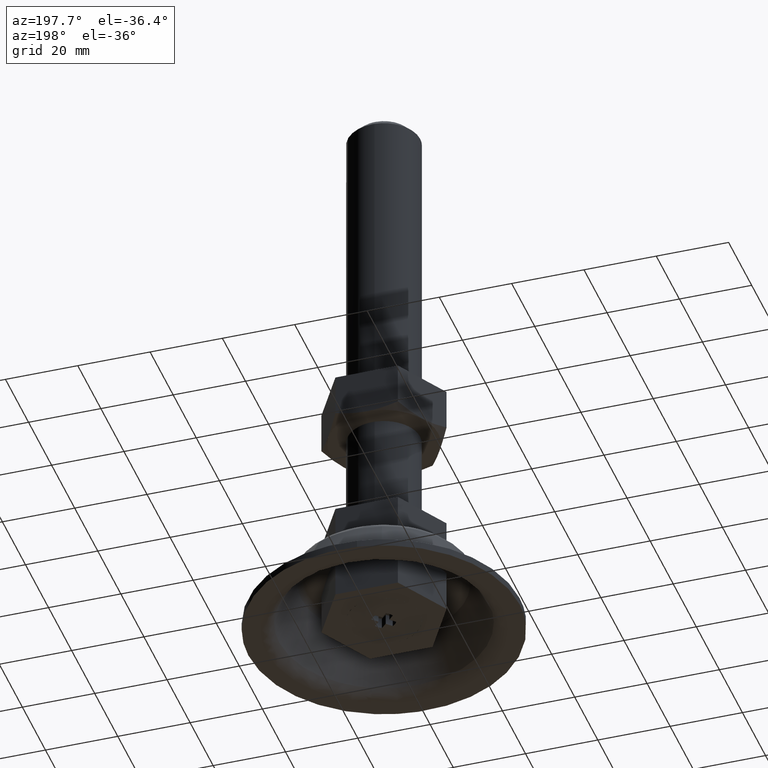
[diagram: clean part render]
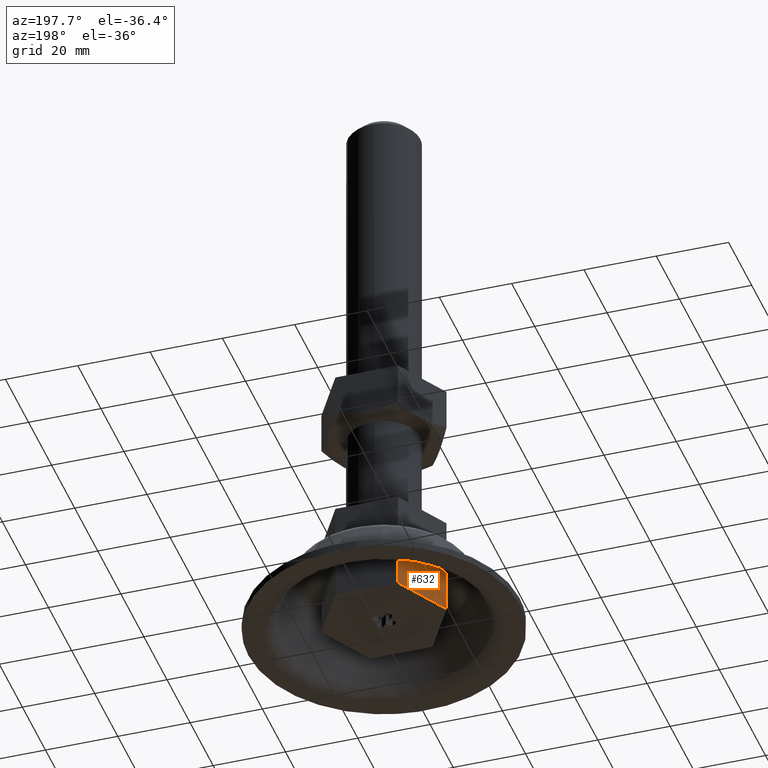
[diagram: same view with one face highlighted and labeled with its STEP entity id]
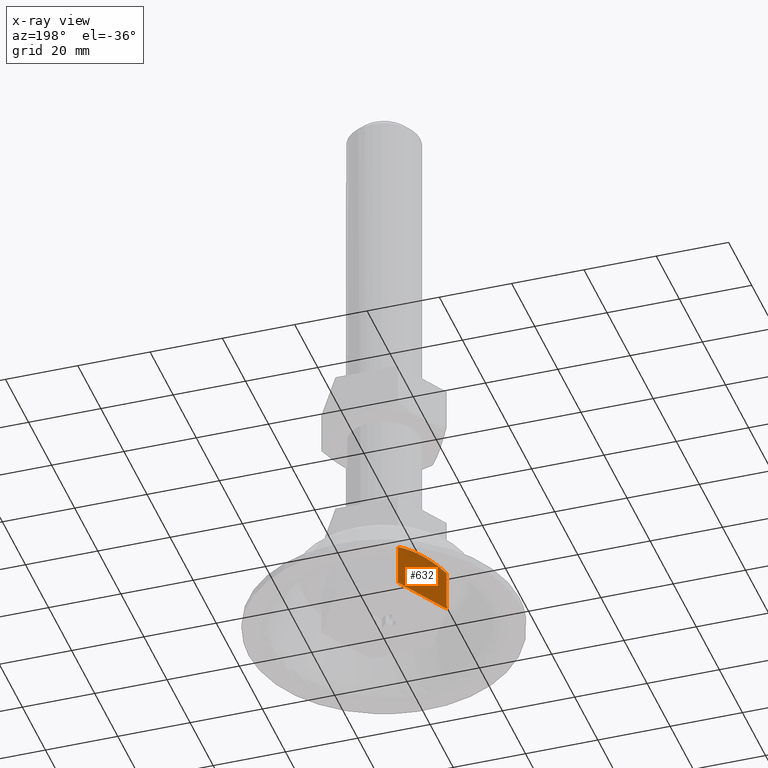
[diagram: x-ray of the same camera — body ghosted, the highlighted face saturated]
A machine part, auxiliary view. The second image highlights one B-rep face of the part: STEP entity #632.
The next image is the same camera in x-ray: the body ghosted, the highlighted face saturated — about 11% of this face is hidden behind the body in this view.
In plain terms, the highlighted face is a freeform B-spline surface patch.
Its self-contained STEP definition (entity closure, byte-faithful):
#116=CARTESIAN_POINT('',(8.639746000000001,15.0,62.345671394023597));
#117=VERTEX_POINT('',#116);
#140=CARTESIAN_POINT('',(17.300000000000001,-5.809094E-016,62.339745951231102));
#141=VERTEX_POINT('',#140);
#142=CARTESIAN_POINT('',(17.300000000000001,-5.809094E-016,62.339745951231102));
#143=CARTESIAN_POINT('',(16.592941722767879,1.224660865429817,61.931525664537929));
#144=CARTESIAN_POINT('',(15.880722203566361,2.458261264219840,61.595166574800132));
#145=CARTESIAN_POINT('',(14.801235094892681,4.327987790728767,61.245981053792327));
#146=CARTESIAN_POINT('',(14.439541958482760,4.954458682477307,61.155540189446192));
#147=CARTESIAN_POINT('',(13.711936844397581,6.214707713426920,61.033398389028697));
#148=CARTESIAN_POINT('',(13.346021212827759,6.848492181359091,61.001748326998872));
#149=CARTESIAN_POINT('',(12.885799685170850,7.645619253481175,61.001546577078031));
#150=CARTESIAN_POINT('',(12.793614645803350,7.805288426061178,61.003465697697358));
#151=CARTESIAN_POINT('',(12.608961067811620,8.125117806339844,61.011251166375260));
#152=CARTESIAN_POINT('',(12.516661840701390,8.284984757892703,61.017113104138417));
#153=CARTESIAN_POINT('',(12.240427566274510,8.763436558082770,61.040486526452383));
#154=CARTESIAN_POINT('',(12.056912984918890,9.081293138309439,61.063800979005457));
#155=CARTESIAN_POINT('',(11.508210259183761,10.031674141687260,61.155931109065421));
#156=CARTESIAN_POINT('',(11.144867414517419,10.661002411966070,61.246985155436583));
#157=CARTESIAN_POINT('',(10.061320491401840,12.537760743388411,61.598259512653492));
#158=CARTESIAN_POINT('',(9.347572270797706,13.774008930688920,61.936281682498603));
#159=CARTESIAN_POINT('',(8.639746000000001,15.0,62.345671394023597));
#160=B_SPLINE_CURVE_WITH_KNOTS('',3,(#142,#143,#144,#145,#146,#147,#148,#149,#150,#151,#152,#153,#154,#155,#156,#157,#158,#159),.UNSPECIFIED.,.F.,.U.,(4,2,2,2,2,2,2,2,4),(0.0,0.249999999999999,0.374999999999999,0.499999999999998,0.531249999999998,0.562499999999998,0.624999999999998,0.749999999999999,1.0),.UNSPECIFIED.);
#161=EDGE_CURVE('',#141,#117,#160,.T.);
#527=CARTESIAN_POINT('',(17.300000000000001,0.0,74.0));
#528=VERTEX_POINT('',#527);
#534=CARTESIAN_POINT('',(8.639746000000001,15.0,74.0));
#535=VERTEX_POINT('',#534);
#536=CARTESIAN_POINT('',(8.639746000000001,15.0,74.0));
#537=CARTESIAN_POINT('',(17.300000000000001,0.0,74.0));
#538=QUASI_UNIFORM_CURVE('',1,(#536,#537),.UNSPECIFIED.,.F.,.U.);
#539=EDGE_CURVE('',#535,#528,#538,.T.);
#608=CARTESIAN_POINT('',(17.300000000000001,0.0,74.0));
#609=CARTESIAN_POINT('',(17.300000000000001,-5.809094E-016,62.339745951231102));
#610=QUASI_UNIFORM_CURVE('',1,(#608,#609),.UNSPECIFIED.,.F.,.U.);
#611=EDGE_CURVE('',#528,#141,#610,.T.);
#617=CARTESIAN_POINT('',(17.732579507922232,-0.749249689308545,60.352316161207760));
#618=CARTESIAN_POINT('',(8.207166104934263,15.749250359860810,60.352316161207760));
#619=CARTESIAN_POINT('',(17.732579507922232,-0.749249689308545,74.649271059206256));
#620=CARTESIAN_POINT('',(8.207166104934263,15.749250359860810,74.649271059206256));
#621=B_SPLINE_SURFACE_WITH_KNOTS('',1,1,((#617,#619),(#618,#620)),.UNSPECIFIED.,.F.,.F.,.U.,(2,2),(2,2),(0.0,19.050826868413449),(0.0,14.296954897998500),.UNSPECIFIED.);
#622=ORIENTED_EDGE('',*,*,#611,.T.);
#623=ORIENTED_EDGE('',*,*,#161,.T.);
#624=CARTESIAN_POINT('',(8.639746000000001,15.0,74.0));
#625=CARTESIAN_POINT('',(8.639746000000001,15.0,62.345671394023597));
#626=QUASI_UNIFORM_CURVE('',1,(#624,#625),.UNSPECIFIED.,.F.,.U.);
#627=EDGE_CURVE('',#535,#117,#626,.T.);
#628=ORIENTED_EDGE('',*,*,#627,.F.);
#629=ORIENTED_EDGE('',*,*,#539,.T.);
#630=EDGE_LOOP('',(#622,#623,#628,#629));
#631=FACE_OUTER_BOUND('',#630,.T.);
#632=ADVANCED_FACE('',(#631),#621,.T.);